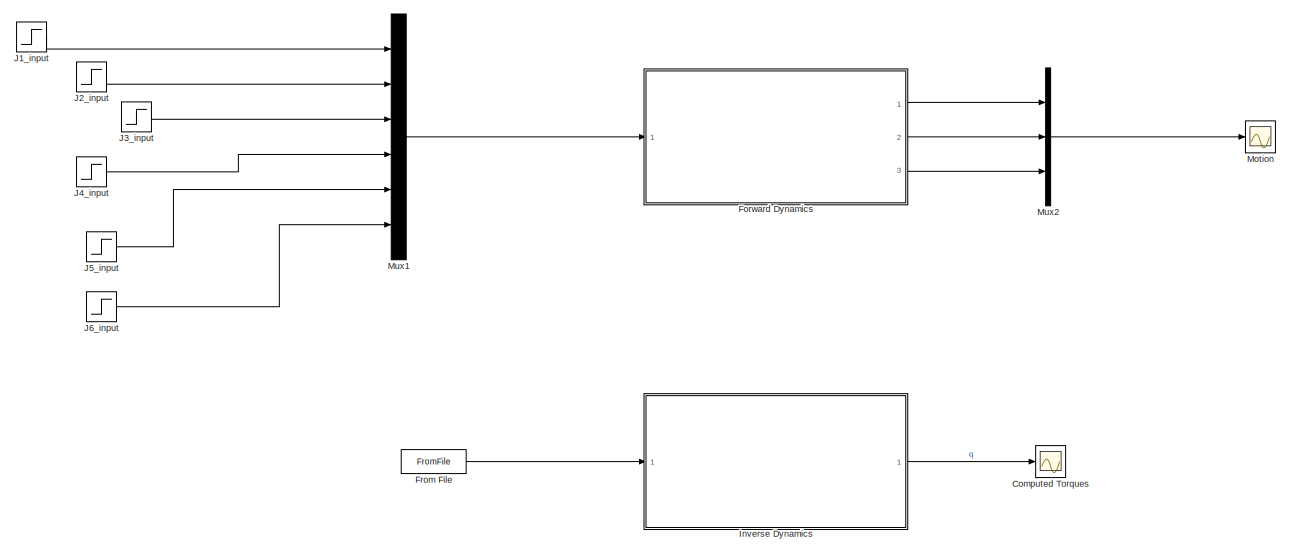
[diagram: root canvas - part 1/2, full width, top band]
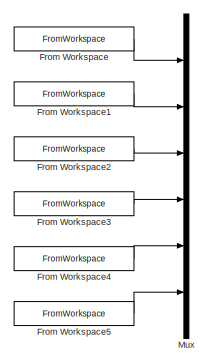
[diagram: root canvas - part 2/2, bottom left region]
MODEL slx_8f83f136854c
KIND model
CONFIG AbsTol = auto
CONFIG EnableMultiTasking = on
CONFIG FixedStep = auto
CONFIG MaxStep = auto
CONFIG MinStep = auto
CONFIG RelTol = 1e-3
CONFIG SampleTimeConstraint = Unconstrained
CONFIG Solver = VariableStepAuto
CONFIG SolverName = VariableStepAuto
CONFIG StartTime = 0.0
CONFIG StopTime = 1
BLOCK [Scope] Computed Torques
  NumInputPorts = 1
  Ports = [1]
  ScopeSpecificationString = Simulink.scopes.TimeScopeBlockCfg('CurrentConfiguration', extmgr.ConfigurationSet(extmgr.Configuration('Core','General UI',true,'FigureColor',[1 1 1]),extmgr.Configuration('Core','Source UI',true),extmgr.Configuration('Sources','WiredSimulink',true,'DataLoggingVariableName','ScopeData2','DataLoggingLimitDataPoints',true,'DataLoggingSaveFormat','Array','DataLoggingDecimation','1','DataLoggingDecima...<+2182ch>
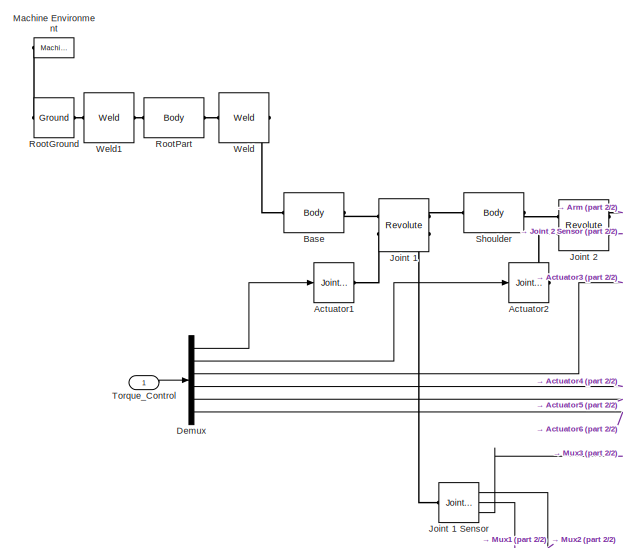
[diagram: Forward Dynamics  - part 1/2, top left region]
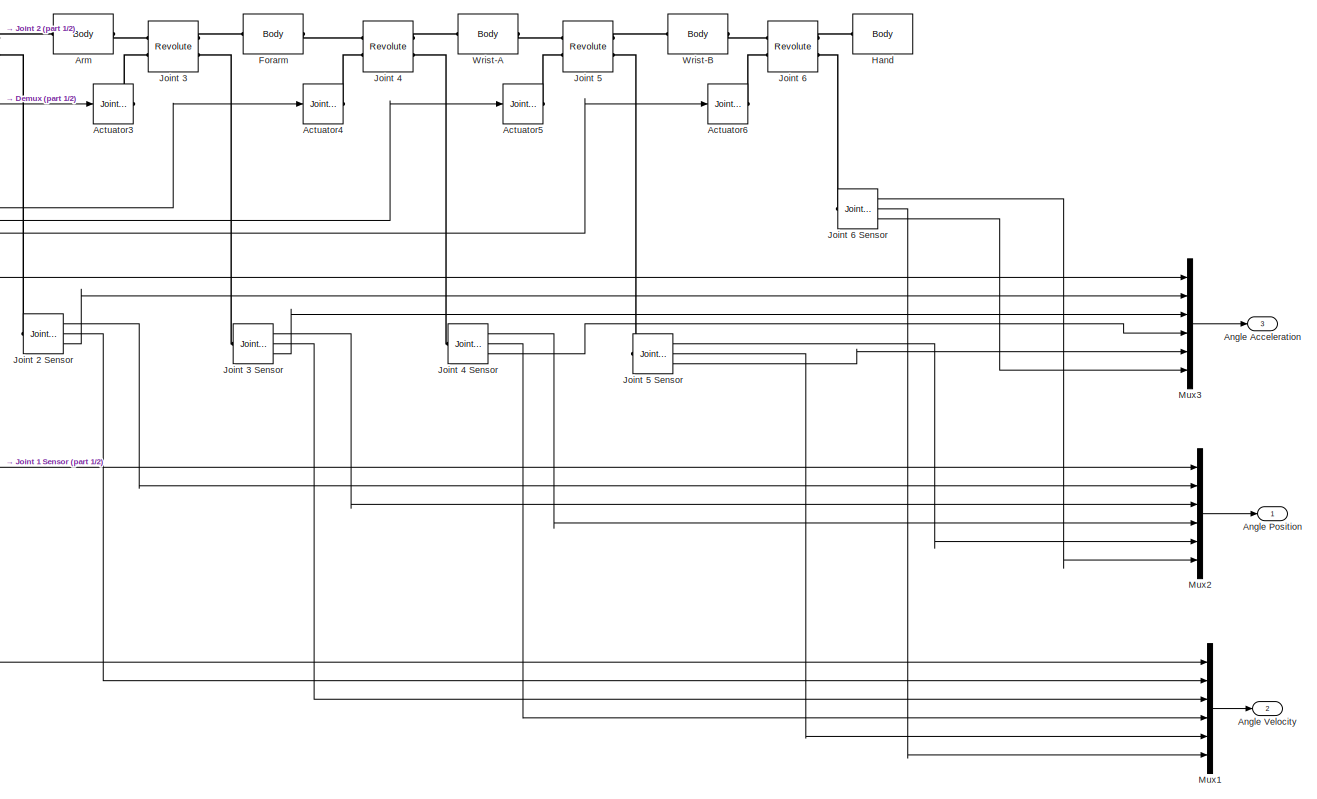
[diagram: Forward Dynamics  - part 2/2, center side, full height]
BLOCK [SubSystem] Forward Dynamics 
  Ports = [1, 3]
  RequestExecContextInheritance = off
  Variant = off
BLOCK [Reference] Forward Dynamics /Actuator1  REF=mblibv1/Sensors & 
Actuators/Joint Actuator
  Ports = [1, 0, 0, 0, 0, 0, 1]
  SourceBlock = mblibv1/Sensors & \nActuators/Joint Actuator
  SourceProductBaseCode = MS
  SourceProductName = Simscape Multibody
  SourceType = Joint Actuator
BLOCK [Reference] Forward Dynamics /Actuator2  REF=mblibv1/Sensors & 
Actuators/Joint Actuator
  Ports = [1, 0, 0, 0, 0, 0, 1]
  SourceBlock = mblibv1/Sensors & \nActuators/Joint Actuator
  SourceProductBaseCode = MS
  SourceProductName = Simscape Multibody
  SourceType = Joint Actuator
BLOCK [Reference] Forward Dynamics /Actuator3  REF=mblibv1/Sensors & 
Actuators/Joint Actuator
  Ports = [1, 0, 0, 0, 0, 0, 1]
  SourceBlock = mblibv1/Sensors & \nActuators/Joint Actuator
  SourceProductBaseCode = MS
  SourceProductName = Simscape Multibody
  SourceType = Joint Actuator
BLOCK [Reference] Forward Dynamics /Actuator4  REF=mblibv1/Sensors & 
Actuators/Joint Actuator
  Ports = [1, 0, 0, 0, 0, 0, 1]
  SourceBlock = mblibv1/Sensors & \nActuators/Joint Actuator
  SourceProductBaseCode = MS
  SourceProductName = Simscape Multibody
  SourceType = Joint Actuator
BLOCK [Reference] Forward Dynamics /Actuator5  REF=mblibv1/Sensors & 
Actuators/Joint Actuator
  Ports = [1, 0, 0, 0, 0, 0, 1]
  SourceBlock = mblibv1/Sensors & \nActuators/Joint Actuator
  SourceProductBaseCode = MS
  SourceProductName = Simscape Multibody
  SourceType = Joint Actuator
BLOCK [Reference] Forward Dynamics /Actuator6  REF=mblibv1/Sensors & 
Actuators/Joint Actuator
  Ports = [1, 0, 0, 0, 0, 0, 1]
  SourceBlock = mblibv1/Sensors & \nActuators/Joint Actuator
  SourceProductBaseCode = MS
  SourceProductName = Simscape Multibody
  SourceType = Joint Actuator
BLOCK [Outport] Forward Dynamics /Angle Acceleration
  IconDisplay = Port number
  Port = 3
BLOCK [Outport] Forward Dynamics /Angle Position 
  IconDisplay = Port number
BLOCK [Outport] Forward Dynamics /Angle Velocity
  IconDisplay = Port number
  Port = 2
BLOCK [Reference] Forward Dynamics /Arm  REF=mblibv1/Bodies/Body
  Ports = [0, 0, 0, 0, 0, 1, 1]
  SourceBlock = mblibv1/Bodies/Body
  SourceProductBaseCode = MS
  SourceProductName = Simscape Multibody
  SourceType = Body
BLOCK [Reference] Forward Dynamics /Base  REF=mblibv1/Bodies/Body
  Ports = [0, 0, 0, 0, 0, 1, 1]
  SourceBlock = mblibv1/Bodies/Body
  SourceProductBaseCode = MS
  SourceProductName = Simscape Multibody
  SourceType = Body
BLOCK [Demux] Forward Dynamics /Demux
  DisplayOption = bar
  Outputs = 6
  Ports = [1, 6]
BLOCK [Reference] Forward Dynamics /Forarm  REF=mblibv1/Bodies/Body
  Ports = [0, 0, 0, 0, 0, 1, 1]
  SourceBlock = mblibv1/Bodies/Body
  SourceProductBaseCode = MS
  SourceProductName = Simscape Multibody
  SourceType = Body
BLOCK [Reference] Forward Dynamics /Hand  REF=mblibv1/Bodies/Body
  Ports = [0, 0, 0, 0, 0, 1]
  SourceBlock = mblibv1/Bodies/Body
  SourceProductBaseCode = MS
  SourceProductName = Simscape Multibody
  SourceType = Body
BLOCK [Reference] Forward Dynamics /Joint 1  REF=mblibv1/Joints/Revolute
  Ports = [0, 0, 0, 0, 0, 2, 2]
  SourceBlock = mblibv1/Joints/Revolute
  SourceProductBaseCode = MS
  SourceProductName = Simscape Multibody
  SourceType = Revolute
BLOCK [Reference] Forward Dynamics /Joint 1 Sensor  REF=mblibv1/Sensors & 
Actuators/Joint Sensor
  Ports = [0, 3, 0, 0, 0, 1]
  SourceBlock = mblibv1/Sensors & \nActuators/Joint Sensor
  SourceProductBaseCode = MS
  SourceProductName = Simscape Multibody
  SourceType = Joint Sensor
BLOCK [Reference] Forward Dynamics /Joint 2  REF=mblibv1/Joints/Revolute
  Ports = [0, 0, 0, 0, 0, 2, 2]
  SourceBlock = mblibv1/Joints/Revolute
  SourceProductBaseCode = MS
  SourceProductName = Simscape Multibody
  SourceType = Revolute
BLOCK [Reference] Forward Dynamics /Joint 2 Sensor  REF=mblibv1/Sensors & 
Actuators/Joint Sensor
  Ports = [0, 3, 0, 0, 0, 1]
  SourceBlock = mblibv1/Sensors & \nActuators/Joint Sensor
  SourceProductBaseCode = MS
  SourceProductName = Simscape Multibody
  SourceType = Joint Sensor
BLOCK [Reference] Forward Dynamics /Joint 3  REF=mblibv1/Joints/Revolute
  Ports = [0, 0, 0, 0, 0, 2, 2]
  SourceBlock = mblibv1/Joints/Revolute
  SourceProductBaseCode = MS
  SourceProductName = Simscape Multibody
  SourceType = Revolute
BLOCK [Reference] Forward Dynamics /Joint 3 Sensor  REF=mblibv1/Sensors & 
Actuators/Joint Sensor
  Ports = [0, 3, 0, 0, 0, 1]
  SourceBlock = mblibv1/Sensors & \nActuators/Joint Sensor
  SourceProductBaseCode = MS
  SourceProductName = Simscape Multibody
  SourceType = Joint Sensor
BLOCK [Reference] Forward Dynamics /Joint 4  REF=mblibv1/Joints/Revolute
  Ports = [0, 0, 0, 0, 0, 2, 2]
  SourceBlock = mblibv1/Joints/Revolute
  SourceProductBaseCode = MS
  SourceProductName = Simscape Multibody
  SourceType = Revolute
BLOCK [Reference] Forward Dynamics /Joint 4 Sensor  REF=mblibv1/Sensors & 
Actuators/Joint Sensor
  Ports = [0, 3, 0, 0, 0, 1]
  SourceBlock = mblibv1/Sensors & \nActuators/Joint Sensor
  SourceProductBaseCode = MS
  SourceProductName = Simscape Multibody
  SourceType = Joint Sensor
BLOCK [Reference] Forward Dynamics /Joint 5  REF=mblibv1/Joints/Revolute
  Ports = [0, 0, 0, 0, 0, 2, 2]
  SourceBlock = mblibv1/Joints/Revolute
  SourceProductBaseCode = MS
  SourceProductName = Simscape Multibody
  SourceType = Revolute
BLOCK [Reference] Forward Dynamics /Joint 5 Sensor  REF=mblibv1/Sensors & 
Actuators/Joint Sensor
  Ports = [0, 3, 0, 0, 0, 1]
  SourceBlock = mblibv1/Sensors & \nActuators/Joint Sensor
  SourceProductBaseCode = MS
  SourceProductName = Simscape Multibody
  SourceType = Joint Sensor
BLOCK [Reference] Forward Dynamics /Joint 6  REF=mblibv1/Joints/Revolute
  Ports = [0, 0, 0, 0, 0, 2, 2]
  SourceBlock = mblibv1/Joints/Revolute
  SourceProductBaseCode = MS
  SourceProductName = Simscape Multibody
  SourceType = Revolute
BLOCK [Reference] Forward Dynamics /Joint 6 Sensor  REF=mblibv1/Sensors & 
Actuators/Joint Sensor
  Ports = [0, 3, 0, 0, 0, 1]
  SourceBlock = mblibv1/Sensors & \nActuators/Joint Sensor
  SourceProductBaseCode = MS
  SourceProductName = Simscape Multibody
  SourceType = Joint Sensor
BLOCK [Reference] Forward Dynamics /Machine Environment  REF=mblibv1/Bodies/Machine
Environment
  Ports = [0, 0, 0, 0, 0, 0, 1]
  SourceBlock = mblibv1/Bodies/Machine\nEnvironment
  SourceProductBaseCode = MS
  SourceProductName = Simscape Multibody
  SourceType = Machine Environment
BLOCK [Mux] Forward Dynamics /Mux1
  DisplayOption = bar
  Inputs = 6
  Ports = [6, 1]
BLOCK [Mux] Forward Dynamics /Mux2
  DisplayOption = bar
  Inputs = 6
  Ports = [6, 1]
BLOCK [Mux] Forward Dynamics /Mux3
  DisplayOption = bar
  Inputs = 6
  Ports = [6, 1]
BLOCK [Reference] Forward Dynamics /RootGround  REF=mblibv1/Bodies/Ground
  Ports = [0, 0, 0, 0, 0, 1, 1]
  SourceBlock = mblibv1/Bodies/Ground
  SourceProductBaseCode = MS
  SourceProductName = Simscape Multibody
  SourceType = Ground
  UserDataPersistent = on
BLOCK [Reference] Forward Dynamics /RootPart  REF=mblibv1/Bodies/Body
  Ports = [0, 0, 0, 0, 0, 1, 1]
  SourceBlock = mblibv1/Bodies/Body
  SourceProductBaseCode = MS
  SourceProductName = Simscape Multibody
  SourceType = Body
BLOCK [Reference] Forward Dynamics /Shoulder  REF=mblibv1/Bodies/Body
  Ports = [0, 0, 0, 0, 0, 1, 1]
  SourceBlock = mblibv1/Bodies/Body
  SourceProductBaseCode = MS
  SourceProductName = Simscape Multibody
  SourceType = Body
BLOCK [Inport] Forward Dynamics /Torque_Control 
  IconDisplay = Port number
BLOCK [Reference] Forward Dynamics /Weld  REF=mblibv1/Joints/Weld
  Ports = [0, 0, 0, 0, 0, 1, 1]
  SourceBlock = mblibv1/Joints/Weld
  SourceProductBaseCode = MS
  SourceProductName = Simscape Multibody
  SourceType = Weld
BLOCK [Reference] Forward Dynamics /Weld1  REF=mblibv1/Joints/Weld
  Ports = [0, 0, 0, 0, 0, 1, 1]
  SourceBlock = mblibv1/Joints/Weld
  SourceProductBaseCode = MS
  SourceProductName = Simscape Multibody
  SourceType = Weld
BLOCK [Reference] Forward Dynamics /Wrist-A  REF=mblibv1/Bodies/Body
  Ports = [0, 0, 0, 0, 0, 1, 1]
  SourceBlock = mblibv1/Bodies/Body
  SourceProductBaseCode = MS
  SourceProductName = Simscape Multibody
  SourceType = Body
BLOCK [Reference] Forward Dynamics /Wrist-B  REF=mblibv1/Bodies/Body
  Ports = [0, 0, 0, 0, 0, 1, 1]
  SourceBlock = mblibv1/Bodies/Body
  SourceProductBaseCode = MS
  SourceProductName = Simscape Multibody
  SourceType = Body
BLOCK [FromFile] From File
  FileName = Motion.mat
  SampleTime = 0
BLOCK [FromWorkspace] From Workspace
  Commented = on
  SampleTime = 0
  VariableName = [q1]
  ZeroCross = on
BLOCK [FromWorkspace] From Workspace1
  Commented = on
  SampleTime = 0
  VariableName = [q2]
  ZeroCross = on
BLOCK [FromWorkspace] From Workspace2
  Commented = on
  SampleTime = 0
  VariableName = [q3]
  ZeroCross = on
BLOCK [FromWorkspace] From Workspace3
  Commented = on
  SampleTime = 0
  VariableName = [q4]
  ZeroCross = on
BLOCK [FromWorkspace] From Workspace4
  Commented = on
  SampleTime = 0
  VariableName = [q5]
  ZeroCross = on
BLOCK [FromWorkspace] From Workspace5
  Commented = on
  SampleTime = 0
  VariableName = [q6]
  ZeroCross = on
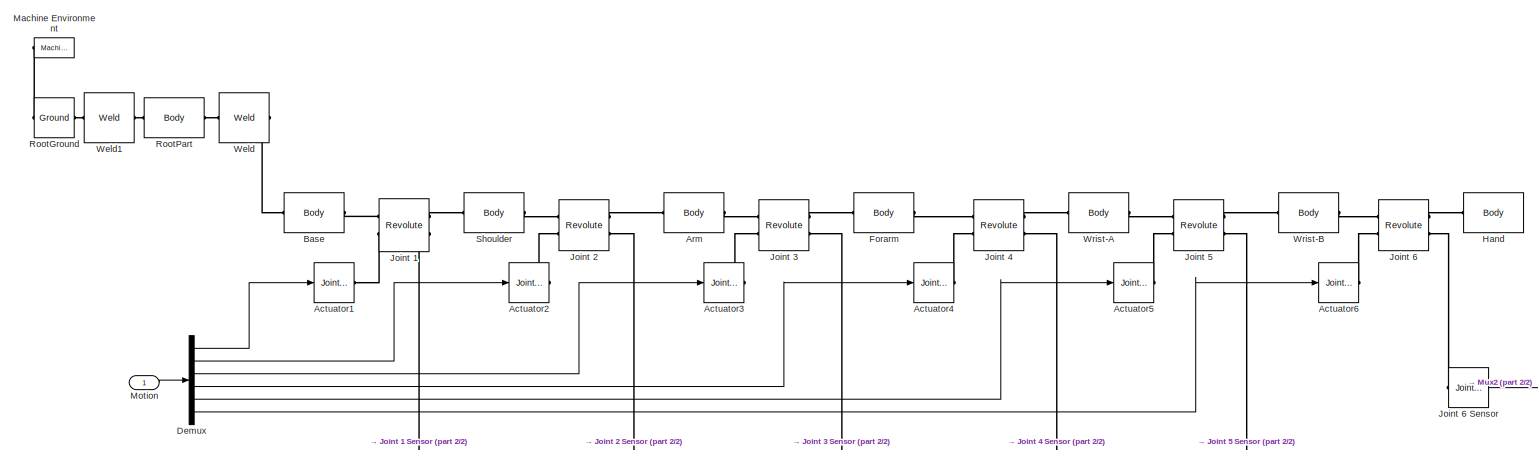
[diagram: Inverse Dynamics  - part 1/2, full width, top band]
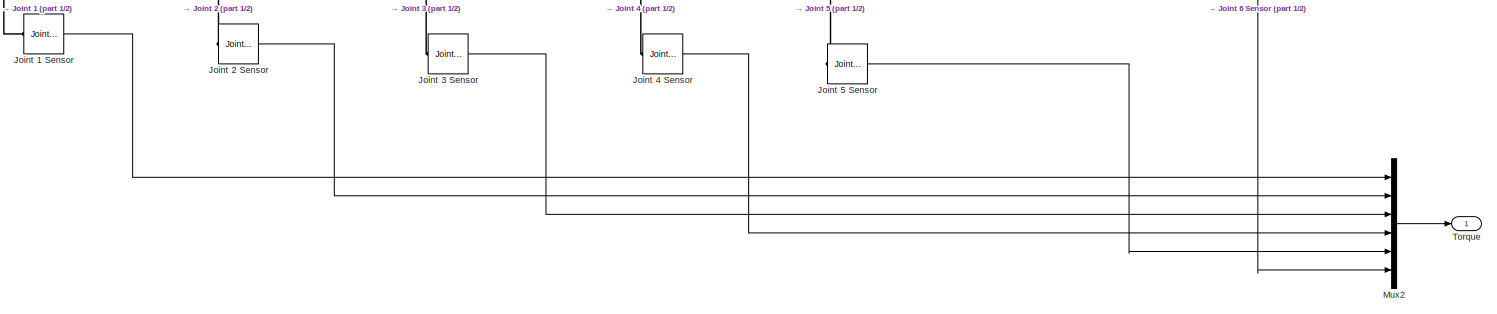
[diagram: Inverse Dynamics  - part 2/2, full width, bottom band]
BLOCK [SubSystem] Inverse Dynamics 
  Ports = [1, 1]
  RequestExecContextInheritance = off
  Variant = off
BLOCK [Reference] Inverse Dynamics /Actuator1  REF=mblibv1/Sensors & 
Actuators/Joint Actuator
  Ports = [1, 0, 0, 0, 0, 0, 1]
  SourceBlock = mblibv1/Sensors & \nActuators/Joint Actuator
  SourceProductBaseCode = MS
  SourceProductName = Simscape Multibody
  SourceType = Joint Actuator
BLOCK [Reference] Inverse Dynamics /Actuator2  REF=mblibv1/Sensors & 
Actuators/Joint Actuator
  Ports = [1, 0, 0, 0, 0, 0, 1]
  SourceBlock = mblibv1/Sensors & \nActuators/Joint Actuator
  SourceProductBaseCode = MS
  SourceProductName = Simscape Multibody
  SourceType = Joint Actuator
BLOCK [Reference] Inverse Dynamics /Actuator3  REF=mblibv1/Sensors & 
Actuators/Joint Actuator
  Ports = [1, 0, 0, 0, 0, 0, 1]
  SourceBlock = mblibv1/Sensors & \nActuators/Joint Actuator
  SourceProductBaseCode = MS
  SourceProductName = Simscape Multibody
  SourceType = Joint Actuator
BLOCK [Reference] Inverse Dynamics /Actuator4  REF=mblibv1/Sensors & 
Actuators/Joint Actuator
  Ports = [1, 0, 0, 0, 0, 0, 1]
  SourceBlock = mblibv1/Sensors & \nActuators/Joint Actuator
  SourceProductBaseCode = MS
  SourceProductName = Simscape Multibody
  SourceType = Joint Actuator
BLOCK [Reference] Inverse Dynamics /Actuator5  REF=mblibv1/Sensors & 
Actuators/Joint Actuator
  Ports = [1, 0, 0, 0, 0, 0, 1]
  SourceBlock = mblibv1/Sensors & \nActuators/Joint Actuator
  SourceProductBaseCode = MS
  SourceProductName = Simscape Multibody
  SourceType = Joint Actuator
BLOCK [Reference] Inverse Dynamics /Actuator6  REF=mblibv1/Sensors & 
Actuators/Joint Actuator
  Ports = [1, 0, 0, 0, 0, 0, 1]
  SourceBlock = mblibv1/Sensors & \nActuators/Joint Actuator
  SourceProductBaseCode = MS
  SourceProductName = Simscape Multibody
  SourceType = Joint Actuator
BLOCK [Reference] Inverse Dynamics /Arm  REF=mblibv1/Bodies/Body
  Ports = [0, 0, 0, 0, 0, 1, 1]
  SourceBlock = mblibv1/Bodies/Body
  SourceProductBaseCode = MS
  SourceProductName = Simscape Multibody
  SourceType = Body
BLOCK [Reference] Inverse Dynamics /Base  REF=mblibv1/Bodies/Body
  Ports = [0, 0, 0, 0, 0, 1, 1]
  SourceBlock = mblibv1/Bodies/Body
  SourceProductBaseCode = MS
  SourceProductName = Simscape Multibody
  SourceType = Body
BLOCK [Demux] Inverse Dynamics /Demux
  DisplayOption = bar
  Outputs = 6
  Ports = [1, 6]
BLOCK [Reference] Inverse Dynamics /Forarm  REF=mblibv1/Bodies/Body
  Ports = [0, 0, 0, 0, 0, 1, 1]
  SourceBlock = mblibv1/Bodies/Body
  SourceProductBaseCode = MS
  SourceProductName = Simscape Multibody
  SourceType = Body
BLOCK [Reference] Inverse Dynamics /Hand  REF=mblibv1/Bodies/Body
  Ports = [0, 0, 0, 0, 0, 1]
  SourceBlock = mblibv1/Bodies/Body
  SourceProductBaseCode = MS
  SourceProductName = Simscape Multibody
  SourceType = Body
BLOCK [Reference] Inverse Dynamics /Joint 1  REF=mblibv1/Joints/Revolute
  Ports = [0, 0, 0, 0, 0, 2, 2]
  SourceBlock = mblibv1/Joints/Revolute
  SourceProductBaseCode = MS
  SourceProductName = Simscape Multibody
  SourceType = Revolute
BLOCK [Reference] Inverse Dynamics /Joint 1 Sensor  REF=mblibv1/Sensors & 
Actuators/Joint Sensor
  Ports = [0, 1, 0, 0, 0, 1]
  SourceBlock = mblibv1/Sensors & \nActuators/Joint Sensor
  SourceProductBaseCode = MS
  SourceProductName = Simscape Multibody
  SourceType = Joint Sensor
BLOCK [Reference] Inverse Dynamics /Joint 2  REF=mblibv1/Joints/Revolute
  Ports = [0, 0, 0, 0, 0, 2, 2]
  SourceBlock = mblibv1/Joints/Revolute
  SourceProductBaseCode = MS
  SourceProductName = Simscape Multibody
  SourceType = Revolute
BLOCK [Reference] Inverse Dynamics /Joint 2 Sensor  REF=mblibv1/Sensors & 
Actuators/Joint Sensor
  Ports = [0, 1, 0, 0, 0, 1]
  SourceBlock = mblibv1/Sensors & \nActuators/Joint Sensor
  SourceProductBaseCode = MS
  SourceProductName = Simscape Multibody
  SourceType = Joint Sensor
BLOCK [Reference] Inverse Dynamics /Joint 3  REF=mblibv1/Joints/Revolute
  Ports = [0, 0, 0, 0, 0, 2, 2]
  SourceBlock = mblibv1/Joints/Revolute
  SourceProductBaseCode = MS
  SourceProductName = Simscape Multibody
  SourceType = Revolute
BLOCK [Reference] Inverse Dynamics /Joint 3 Sensor  REF=mblibv1/Sensors & 
Actuators/Joint Sensor
  Ports = [0, 1, 0, 0, 0, 1]
  SourceBlock = mblibv1/Sensors & \nActuators/Joint Sensor
  SourceProductBaseCode = MS
  SourceProductName = Simscape Multibody
  SourceType = Joint Sensor
BLOCK [Reference] Inverse Dynamics /Joint 4  REF=mblibv1/Joints/Revolute
  Ports = [0, 0, 0, 0, 0, 2, 2]
  SourceBlock = mblibv1/Joints/Revolute
  SourceProductBaseCode = MS
  SourceProductName = Simscape Multibody
  SourceType = Revolute
BLOCK [Reference] Inverse Dynamics /Joint 4 Sensor  REF=mblibv1/Sensors & 
Actuators/Joint Sensor
  Ports = [0, 1, 0, 0, 0, 1]
  SourceBlock = mblibv1/Sensors & \nActuators/Joint Sensor
  SourceProductBaseCode = MS
  SourceProductName = Simscape Multibody
  SourceType = Joint Sensor
BLOCK [Reference] Inverse Dynamics /Joint 5  REF=mblibv1/Joints/Revolute
  Ports = [0, 0, 0, 0, 0, 2, 2]
  SourceBlock = mblibv1/Joints/Revolute
  SourceProductBaseCode = MS
  SourceProductName = Simscape Multibody
  SourceType = Revolute
BLOCK [Reference] Inverse Dynamics /Joint 5 Sensor  REF=mblibv1/Sensors & 
Actuators/Joint Sensor
  Ports = [0, 1, 0, 0, 0, 1]
  SourceBlock = mblibv1/Sensors & \nActuators/Joint Sensor
  SourceProductBaseCode = MS
  SourceProductName = Simscape Multibody
  SourceType = Joint Sensor
BLOCK [Reference] Inverse Dynamics /Joint 6  REF=mblibv1/Joints/Revolute
  Ports = [0, 0, 0, 0, 0, 2, 2]
  SourceBlock = mblibv1/Joints/Revolute
  SourceProductBaseCode = MS
  SourceProductName = Simscape Multibody
  SourceType = Revolute
BLOCK [Reference] Inverse Dynamics /Joint 6 Sensor  REF=mblibv1/Sensors & 
Actuators/Joint Sensor
  Ports = [0, 1, 0, 0, 0, 1]
  SourceBlock = mblibv1/Sensors & \nActuators/Joint Sensor
  SourceProductBaseCode = MS
  SourceProductName = Simscape Multibody
  SourceType = Joint Sensor
BLOCK [Reference] Inverse Dynamics /Machine Environment  REF=mblibv1/Bodies/Machine
Environment
  Ports = [0, 0, 0, 0, 0, 0, 1]
  SourceBlock = mblibv1/Bodies/Machine\nEnvironment
  SourceProductBaseCode = MS
  SourceProductName = Simscape Multibody
  SourceType = Machine Environment
BLOCK [Inport] Inverse Dynamics /Motion 
  IconDisplay = Port number
BLOCK [Mux] Inverse Dynamics /Mux2
  DisplayOption = bar
  Inputs = 6
  Ports = [6, 1]
BLOCK [Reference] Inverse Dynamics /RootGround  REF=mblibv1/Bodies/Ground
  Ports = [0, 0, 0, 0, 0, 1, 1]
  SourceBlock = mblibv1/Bodies/Ground
  SourceProductBaseCode = MS
  SourceProductName = Simscape Multibody
  SourceType = Ground
  UserDataPersistent = on
BLOCK [Reference] Inverse Dynamics /RootPart  REF=mblibv1/Bodies/Body
  Ports = [0, 0, 0, 0, 0, 1, 1]
  SourceBlock = mblibv1/Bodies/Body
  SourceProductBaseCode = MS
  SourceProductName = Simscape Multibody
  SourceType = Body
BLOCK [Reference] Inverse Dynamics /Shoulder  REF=mblibv1/Bodies/Body
  Ports = [0, 0, 0, 0, 0, 1, 1]
  SourceBlock = mblibv1/Bodies/Body
  SourceProductBaseCode = MS
  SourceProductName = Simscape Multibody
  SourceType = Body
BLOCK [Outport] Inverse Dynamics /Torque 
  IconDisplay = Port number
BLOCK [Reference] Inverse Dynamics /Weld  REF=mblibv1/Joints/Weld
  Ports = [0, 0, 0, 0, 0, 1, 1]
  SourceBlock = mblibv1/Joints/Weld
  SourceProductBaseCode = MS
  SourceProductName = Simscape Multibody
  SourceType = Weld
BLOCK [Reference] Inverse Dynamics /Weld1  REF=mblibv1/Joints/Weld
  Ports = [0, 0, 0, 0, 0, 1, 1]
  SourceBlock = mblibv1/Joints/Weld
  SourceProductBaseCode = MS
  SourceProductName = Simscape Multibody
  SourceType = Weld
BLOCK [Reference] Inverse Dynamics /Wrist-A  REF=mblibv1/Bodies/Body
  Ports = [0, 0, 0, 0, 0, 1, 1]
  SourceBlock = mblibv1/Bodies/Body
  SourceProductBaseCode = MS
  SourceProductName = Simscape Multibody
  SourceType = Body
BLOCK [Reference] Inverse Dynamics /Wrist-B  REF=mblibv1/Bodies/Body
  Ports = [0, 0, 0, 0, 0, 1, 1]
  SourceBlock = mblibv1/Bodies/Body
  SourceProductBaseCode = MS
  SourceProductName = Simscape Multibody
  SourceType = Body
BLOCK [Step] J1_input
  SampleTime = 0
BLOCK [Step] J2_input
  SampleTime = 0
BLOCK [Step] J3_input
  SampleTime = 0
BLOCK [Step] J4_input
  SampleTime = 0
BLOCK [Step] J5_input
  SampleTime = 0
BLOCK [Step] J6_input
  SampleTime = 0
BLOCK [Scope] Motion
  NumInputPorts = 1
  Ports = [1]
  ScopeSpecificationString = Simulink.scopes.TimeScopeBlockCfg('CurrentConfiguration', extmgr.ConfigurationSet(extmgr.Configuration('Core','General UI',true,'FigureColor',[1 1 1]),extmgr.Configuration('Core','Source UI',true),extmgr.Configuration('Sources','WiredSimulink',true,'DataLoggingLimitDataPoints',true,'DataLoggingSaveFormat','Array','DataLoggingDecimation','1','DataLoggingDecimateData',true,'DataLoggingVariableName',...<+3539ch>
BLOCK [Mux] Mux
  Commented = on
  DisplayOption = bar
  Inputs = 6
  Ports = [6, 1]
BLOCK [Mux] Mux1
  DisplayOption = bar
  Inputs = 6
  Ports = [6, 1]
BLOCK [Mux] Mux2
  DisplayOption = bar
  Inputs = 3
  Ports = [3, 1]
LINE Forward Dynamics /Demux:1 -> Forward Dynamics /Actuator1:1
LINE Forward Dynamics /Demux:2 -> Forward Dynamics /Actuator2:1
LINE Forward Dynamics /Demux:3 -> Forward Dynamics /Actuator3:1
LINE Forward Dynamics /Demux:4 -> Forward Dynamics /Actuator4:1
LINE Forward Dynamics /Demux:5 -> Forward Dynamics /Actuator5:1
LINE Forward Dynamics /Demux:6 -> Forward Dynamics /Actuator6:1
LINE Forward Dynamics /Joint 1 Sensor:1 -> Forward Dynamics /Mux2:1
LINE Forward Dynamics /Joint 1 Sensor:2 -> Forward Dynamics /Mux1:1
LINE Forward Dynamics /Joint 1 Sensor:3 -> Forward Dynamics /Mux3:1
LINE Forward Dynamics /Joint 2 Sensor:1 -> Forward Dynamics /Mux2:2
LINE Forward Dynamics /Joint 2 Sensor:2 -> Forward Dynamics /Mux1:2
LINE Forward Dynamics /Joint 2 Sensor:3 -> Forward Dynamics /Mux3:2
LINE Forward Dynamics /Joint 3 Sensor:1 -> Forward Dynamics /Mux2:3
LINE Forward Dynamics /Joint 3 Sensor:2 -> Forward Dynamics /Mux1:3
LINE Forward Dynamics /Joint 3 Sensor:3 -> Forward Dynamics /Mux3:3
LINE Forward Dynamics /Joint 4 Sensor:1 -> Forward Dynamics /Mux2:4
LINE Forward Dynamics /Joint 4 Sensor:2 -> Forward Dynamics /Mux1:4
LINE Forward Dynamics /Joint 4 Sensor:3 -> Forward Dynamics /Mux3:4
LINE Forward Dynamics /Joint 5 Sensor:1 -> Forward Dynamics /Mux2:5
LINE Forward Dynamics /Joint 5 Sensor:2 -> Forward Dynamics /Mux1:5
LINE Forward Dynamics /Joint 5 Sensor:3 -> Forward Dynamics /Mux3:5
LINE Forward Dynamics /Joint 6 Sensor:1 -> Forward Dynamics /Mux2:6
LINE Forward Dynamics /Joint 6 Sensor:2 -> Forward Dynamics /Mux1:6
LINE Forward Dynamics /Joint 6 Sensor:3 -> Forward Dynamics /Mux3:6
LINE Forward Dynamics /Mux1:1 -> Forward Dynamics /Angle Velocity:1
LINE Forward Dynamics /Mux2:1 -> Forward Dynamics /Angle Position :1
LINE Forward Dynamics /Mux3:1 -> Forward Dynamics /Angle Acceleration:1
LINE Forward Dynamics /Torque_Control :1 -> Forward Dynamics /Demux:1
LINE Forward Dynamics :1 -> Mux2:1
LINE Forward Dynamics :2 -> Mux2:2
LINE Forward Dynamics :3 -> Mux2:3
LINE From File:1 -> Inverse Dynamics :1
LINE From Workspace1:1 -> Mux:2
LINE From Workspace2:1 -> Mux:3
LINE From Workspace3:1 -> Mux:4
LINE From Workspace4:1 -> Mux:5
LINE From Workspace5:1 -> Mux:6
LINE From Workspace:1 -> Mux:1
LINE Inverse Dynamics /Demux:1 -> Inverse Dynamics /Actuator1:1
LINE Inverse Dynamics /Demux:2 -> Inverse Dynamics /Actuator2:1
LINE Inverse Dynamics /Demux:3 -> Inverse Dynamics /Actuator3:1
LINE Inverse Dynamics /Demux:4 -> Inverse Dynamics /Actuator4:1
LINE Inverse Dynamics /Demux:5 -> Inverse Dynamics /Actuator5:1
LINE Inverse Dynamics /Demux:6 -> Inverse Dynamics /Actuator6:1
LINE Inverse Dynamics /Joint 1 Sensor:1 -> Inverse Dynamics /Mux2:1
LINE Inverse Dynamics /Joint 2 Sensor:1 -> Inverse Dynamics /Mux2:2
LINE Inverse Dynamics /Joint 3 Sensor:1 -> Inverse Dynamics /Mux2:3
LINE Inverse Dynamics /Joint 4 Sensor:1 -> Inverse Dynamics /Mux2:4
LINE Inverse Dynamics /Joint 5 Sensor:1 -> Inverse Dynamics /Mux2:5
LINE Inverse Dynamics /Joint 6 Sensor:1 -> Inverse Dynamics /Mux2:6
LINE Inverse Dynamics /Motion :1 -> Inverse Dynamics /Demux:1
LINE Inverse Dynamics /Mux2:1 -> Inverse Dynamics /Torque :1
LINE Inverse Dynamics :1 -> Computed Torques:1
LINE J1_input:1 -> Mux1:1
LINE J2_input:1 -> Mux1:2
LINE J3_input:1 -> Mux1:3
LINE J4_input:1 -> Mux1:4
LINE J5_input:1 -> Mux1:5
LINE J6_input:1 -> Mux1:6
LINE Mux1:1 -> Forward Dynamics :1
LINE Mux2:1 -> Motion:1
PLINE Forward Dynamics /Actuator1:RConn1 -- Forward Dynamics /Joint 1:LConn2
PLINE Forward Dynamics /Actuator2:RConn1 -- Forward Dynamics /Joint 2:LConn2
PLINE Forward Dynamics /Actuator3:RConn1 -- Forward Dynamics /Joint 3:LConn2
PLINE Forward Dynamics /Actuator4:RConn1 -- Forward Dynamics /Joint 4:LConn2
PLINE Forward Dynamics /Actuator5:RConn1 -- Forward Dynamics /Joint 5:LConn2
PLINE Forward Dynamics /Actuator6:RConn1 -- Forward Dynamics /Joint 6:LConn2
PLINE Forward Dynamics /Arm:LConn1 -- Forward Dynamics /Joint 2:RConn1
PLINE Forward Dynamics /Arm:RConn1 -- Forward Dynamics /Joint 3:LConn1
PLINE Forward Dynamics /Base:LConn1 -- Forward Dynamics /Weld:RConn1
PLINE Forward Dynamics /Base:RConn1 -- Forward Dynamics /Joint 1:LConn1
PLINE Forward Dynamics /Forarm:LConn1 -- Forward Dynamics /Joint 3:RConn1
PLINE Forward Dynamics /Forarm:RConn1 -- Forward Dynamics /Joint 4:LConn1
PLINE Forward Dynamics /Hand:LConn1 -- Forward Dynamics /Joint 6:RConn1
PLINE Forward Dynamics /Joint 1 Sensor:LConn1 -- Forward Dynamics /Joint 1:RConn2
PLINE Forward Dynamics /Joint 1:RConn1 -- Forward Dynamics /Shoulder:LConn1
PLINE Forward Dynamics /Joint 2 Sensor:LConn1 -- Forward Dynamics /Joint 2:RConn2
PLINE Forward Dynamics /Joint 2:LConn1 -- Forward Dynamics /Shoulder:RConn1
PLINE Forward Dynamics /Joint 3 Sensor:LConn1 -- Forward Dynamics /Joint 3:RConn2
PLINE Forward Dynamics /Joint 4 Sensor:LConn1 -- Forward Dynamics /Joint 4:RConn2
PLINE Forward Dynamics /Joint 4:RConn1 -- Forward Dynamics /Wrist-A:LConn1
PLINE Forward Dynamics /Joint 5 Sensor:LConn1 -- Forward Dynamics /Joint 5:RConn2
PLINE Forward Dynamics /Joint 5:LConn1 -- Forward Dynamics /Wrist-A:RConn1
PLINE Forward Dynamics /Joint 5:RConn1 -- Forward Dynamics /Wrist-B:LConn1
PLINE Forward Dynamics /Joint 6 Sensor:LConn1 -- Forward Dynamics /Joint 6:RConn2
PLINE Forward Dynamics /Joint 6:LConn1 -- Forward Dynamics /Wrist-B:RConn1
PLINE Forward Dynamics /Machine Environment:RConn1 -- Forward Dynamics /RootGround:LConn1
PLINE Forward Dynamics /RootGround:RConn1 -- Forward Dynamics /Weld1:LConn1
PLINE Forward Dynamics /RootPart:LConn1 -- Forward Dynamics /Weld1:RConn1
PLINE Forward Dynamics /RootPart:RConn1 -- Forward Dynamics /Weld:LConn1
PLINE Inverse Dynamics /Actuator1:RConn1 -- Inverse Dynamics /Joint 1:LConn2
PLINE Inverse Dynamics /Actuator2:RConn1 -- Inverse Dynamics /Joint 2:LConn2
PLINE Inverse Dynamics /Actuator3:RConn1 -- Inverse Dynamics /Joint 3:LConn2
PLINE Inverse Dynamics /Actuator4:RConn1 -- Inverse Dynamics /Joint 4:LConn2
PLINE Inverse Dynamics /Actuator5:RConn1 -- Inverse Dynamics /Joint 5:LConn2
PLINE Inverse Dynamics /Actuator6:RConn1 -- Inverse Dynamics /Joint 6:LConn2
PLINE Inverse Dynamics /Arm:LConn1 -- Inverse Dynamics /Joint 2:RConn1
PLINE Inverse Dynamics /Arm:RConn1 -- Inverse Dynamics /Joint 3:LConn1
PLINE Inverse Dynamics /Base:LConn1 -- Inverse Dynamics /Weld:RConn1
PLINE Inverse Dynamics /Base:RConn1 -- Inverse Dynamics /Joint 1:LConn1
PLINE Inverse Dynamics /Forarm:LConn1 -- Inverse Dynamics /Joint 3:RConn1
PLINE Inverse Dynamics /Forarm:RConn1 -- Inverse Dynamics /Joint 4:LConn1
PLINE Inverse Dynamics /Hand:LConn1 -- Inverse Dynamics /Joint 6:RConn1
PLINE Inverse Dynamics /Joint 1 Sensor:LConn1 -- Inverse Dynamics /Joint 1:RConn2
PLINE Inverse Dynamics /Joint 1:RConn1 -- Inverse Dynamics /Shoulder:LConn1
PLINE Inverse Dynamics /Joint 2 Sensor:LConn1 -- Inverse Dynamics /Joint 2:RConn2
PLINE Inverse Dynamics /Joint 2:LConn1 -- Inverse Dynamics /Shoulder:RConn1
PLINE Inverse Dynamics /Joint 3 Sensor:LConn1 -- Inverse Dynamics /Joint 3:RConn2
PLINE Inverse Dynamics /Joint 4 Sensor:LConn1 -- Inverse Dynamics /Joint 4:RConn2
PLINE Inverse Dynamics /Joint 4:RConn1 -- Inverse Dynamics /Wrist-A:LConn1
PLINE Inverse Dynamics /Joint 5 Sensor:LConn1 -- Inverse Dynamics /Joint 5:RConn2
PLINE Inverse Dynamics /Joint 5:LConn1 -- Inverse Dynamics /Wrist-A:RConn1
PLINE Inverse Dynamics /Joint 5:RConn1 -- Inverse Dynamics /Wrist-B:LConn1
PLINE Inverse Dynamics /Joint 6 Sensor:LConn1 -- Inverse Dynamics /Joint 6:RConn2
PLINE Inverse Dynamics /Joint 6:LConn1 -- Inverse Dynamics /Wrist-B:RConn1
PLINE Inverse Dynamics /Machine Environment:RConn1 -- Inverse Dynamics /RootGround:LConn1
PLINE Inverse Dynamics /RootGround:RConn1 -- Inverse Dynamics /Weld1:LConn1
PLINE Inverse Dynamics /RootPart:LConn1 -- Inverse Dynamics /Weld1:RConn1
PLINE Inverse Dynamics /RootPart:RConn1 -- Inverse Dynamics /Weld:LConn1
